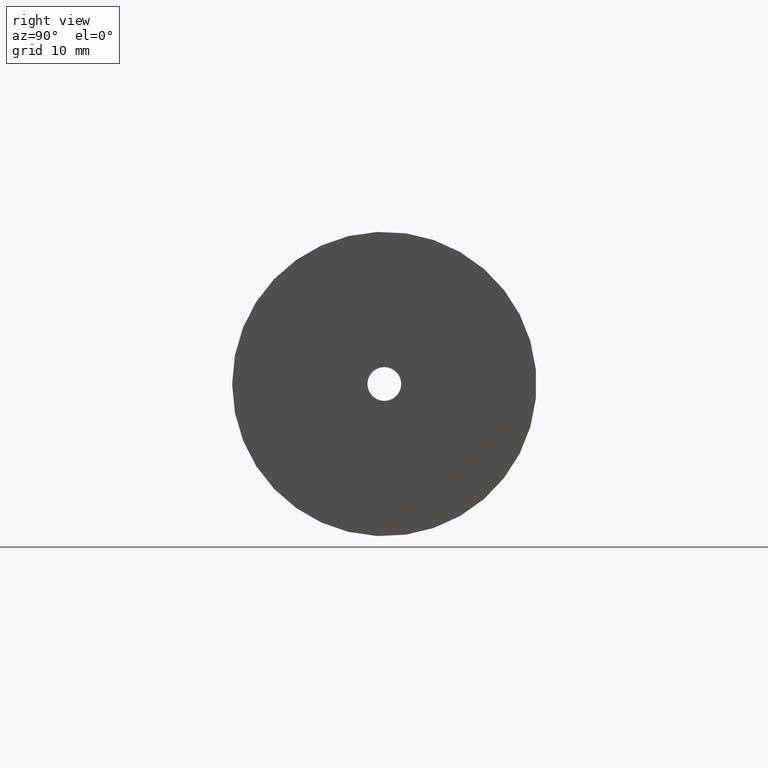
[diagram: clean part render]
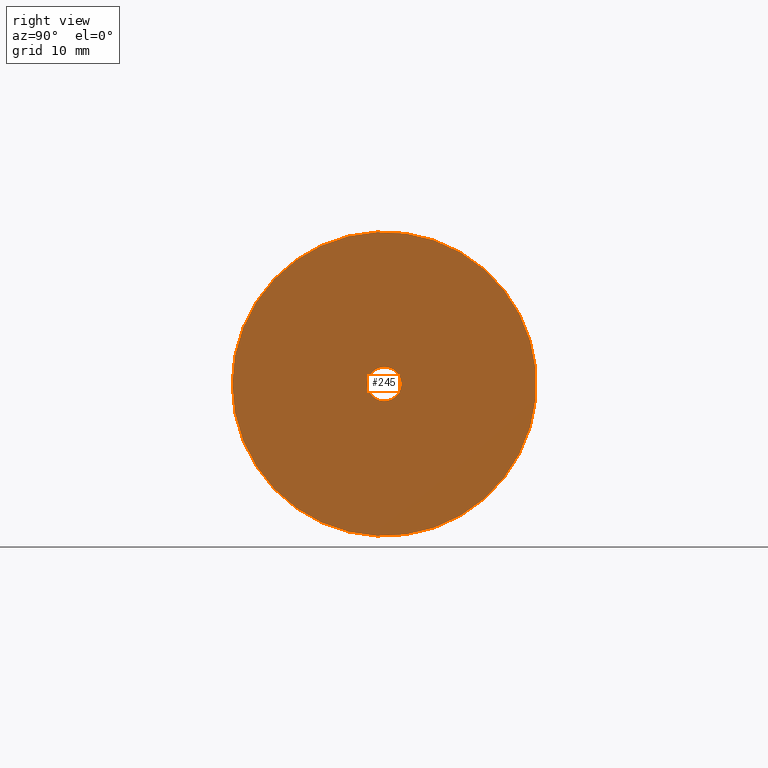
[diagram: same view with one face highlighted and labeled with its STEP entity id]
A machine part, right view. The second image highlights one B-rep face of the part: STEP entity #245.
In plain terms, the highlighted planar face has unit normal (1, 0, 0).
Its self-contained STEP definition (entity closure, byte-faithful):
#87=FACE_BOUND('',#117,.T.);
#91=PLANE('',#290);
#103=FACE_OUTER_BOUND('',#116,.T.);
#116=EDGE_LOOP('',(#218));
#117=EDGE_LOOP('',(#219));
#140=CIRCLE('',#274,1.5);
#149=CIRCLE('',#289,13.5);
#156=VERTEX_POINT('',#408);
#165=VERTEX_POINT('',#437);
#169=EDGE_CURVE('',#156,#156,#140,.T.);
#183=EDGE_CURVE('',#165,#165,#149,.T.);
#218=ORIENTED_EDGE('',*,*,#183,.T.);
#219=ORIENTED_EDGE('',*,*,#169,.T.);
#245=ADVANCED_FACE('',(#103,#87),#91,.T.);
#274=AXIS2_PLACEMENT_3D('',#409,#318,#319);
#289=AXIS2_PLACEMENT_3D('',#438,#353,#354);
#290=AXIS2_PLACEMENT_3D('',#440,#356,#357);
#318=DIRECTION('center_axis',(-1.,0.,0.));
#319=DIRECTION('ref_axis',(0.,0.,-1.));
#353=DIRECTION('center_axis',(1.,0.,0.));
#354=DIRECTION('ref_axis',(0.,0.,-1.));
#356=DIRECTION('center_axis',(1.,0.,0.));
#357=DIRECTION('ref_axis',(0.,0.,-1.));
#408=CARTESIAN_POINT('',(8.88178419700125E-15,-1.83697019872103E-16,1.5));
#409=CARTESIAN_POINT('Origin',(1.77635683940025E-14,0.,0.));
#437=CARTESIAN_POINT('',(4.9960036108132E-15,-13.5,-1.65327317884893E-15));
#438=CARTESIAN_POINT('Origin',(4.9960036108132E-15,0.,0.));
#440=CARTESIAN_POINT('Origin',(1.33226762955019E-14,0.,0.));